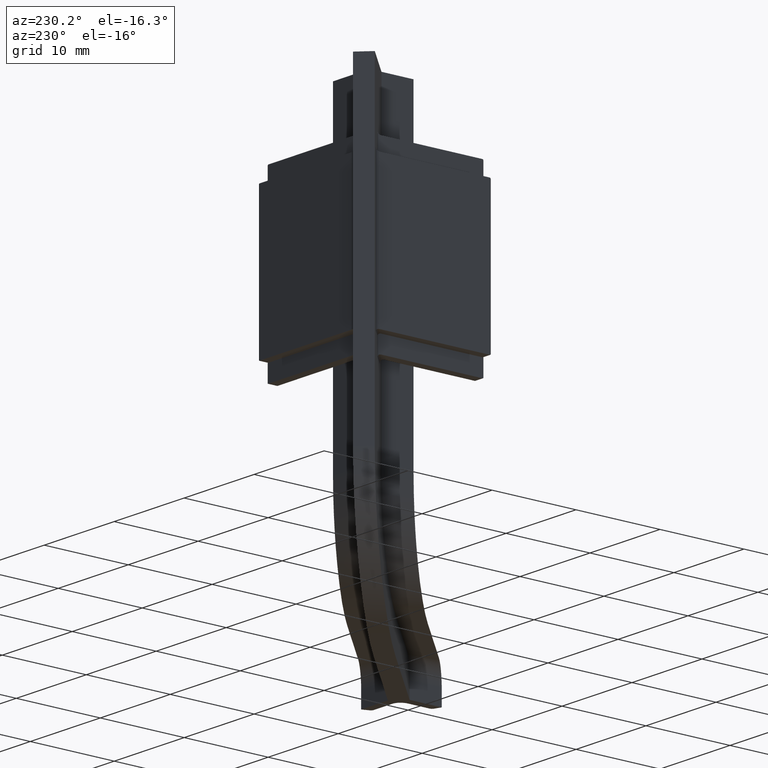
[diagram: clean part render]
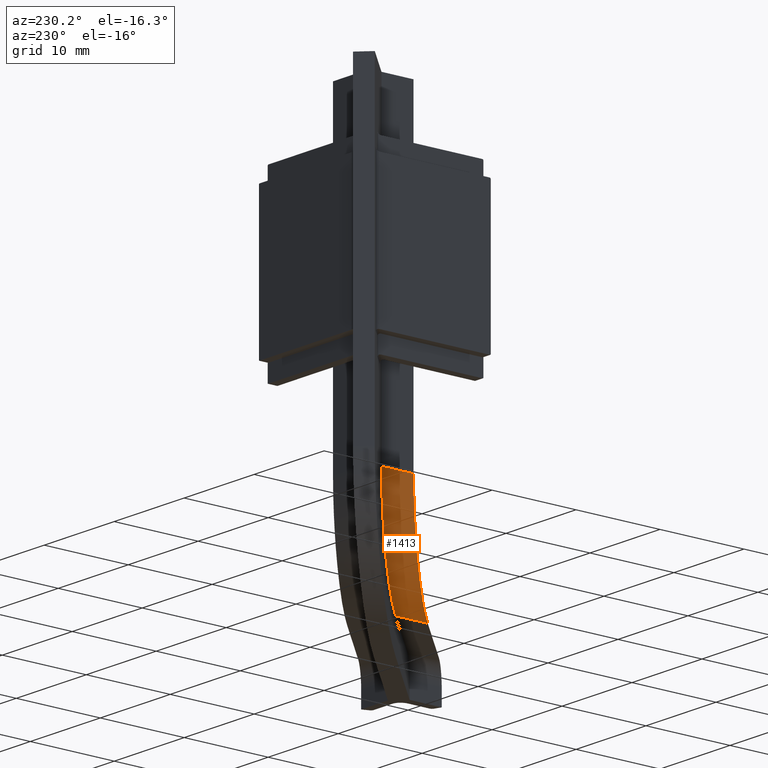
[diagram: same view with one face highlighted and labeled with its STEP entity id]
A machine part, auxiliary view. The second image highlights one B-rep face of the part: STEP entity #1413.
In plain terms, the highlighted cylindrical surface (partial cylindrical patch) has radius 10.1 mm, axis along (0, 1, 0).
Its self-contained STEP definition (entity closure, byte-faithful):
#62=ELLIPSE('',#1579,14.2835569799683,10.1);
#77=B_SPLINE_CURVE_WITH_KNOTS('',3,(#2616,#2617,#2618,#2619,#2620,#2621),
 .UNSPECIFIED.,.F.,.F.,(4,1,1,4),(0.,0.448798950512828,0.897597901025656,
1.5707963267949),.UNSPECIFIED.);
#127=CYLINDRICAL_SURFACE('',#1578,10.1);
#205=FACE_OUTER_BOUND('',#288,.T.);
#288=EDGE_LOOP('',(#1267,#1268,#1269,#1270));
#330=LINE('',#2022,#450);
#434=LINE('',#2605,#554);
#450=VECTOR('',#1611,10.);
#554=VECTOR('',#1967,10.);
#568=VERTEX_POINT('',#2014);
#570=VERTEX_POINT('',#2020);
#683=VERTEX_POINT('',#2602);
#684=VERTEX_POINT('',#2604);
#701=EDGE_CURVE('',#570,#568,#330,.T.);
#882=EDGE_CURVE('',#683,#684,#434,.T.);
#888=EDGE_CURVE('',#568,#683,#77,.T.);
#889=EDGE_CURVE('',#570,#684,#62,.T.);
#1267=ORIENTED_EDGE('',*,*,#888,.F.);
#1268=ORIENTED_EDGE('',*,*,#701,.F.);
#1269=ORIENTED_EDGE('',*,*,#889,.T.);
#1270=ORIENTED_EDGE('',*,*,#882,.F.);
#1413=ADVANCED_FACE('',(#205),#127,.T.);
#1578=AXIS2_PLACEMENT_3D('',#2615,#1978,#1979);
#1579=AXIS2_PLACEMENT_3D('',#2622,#1980,#1981);
#1611=DIRECTION('',(2.22044604925031E-16,-1.,1.63785376900147E-16));
#1967=DIRECTION('',(0.,1.,0.));
#1978=DIRECTION('center_axis',(0.,1.,0.));
#1979=DIRECTION('ref_axis',(1.,0.,-4.93432455388958E-16));
#1980=DIRECTION('center_axis',(-0.707106781186547,-0.707106781186548,-3.92523114670944E-17));
#1981=DIRECTION('ref_axis',(0.707106781186548,-0.707106781186547,-3.48909435263061E-16));
#2014=CARTESIAN_POINT('',(-0.0999999999999912,46.1,-20.));
#2020=CARTESIAN_POINT('',(-0.0999999999999912,49.9183766184074,-20.));
#2022=CARTESIAN_POINT('',(-0.099999999999989,49.9183766184074,-20.));
#2602=CARTESIAN_POINT('',(10.,36.,-30.1));
#2604=CARTESIAN_POINT('',(10.,39.8183766184073,-30.1));
#2605=CARTESIAN_POINT('',(10.,-50.,-30.1));
#2615=CARTESIAN_POINT('Origin',(10.,-50.,-20.));
#2616=CARTESIAN_POINT('Ctrl Pts',(-0.0999999999999879,46.1,-20.));
#2617=CARTESIAN_POINT('Ctrl Pts',(-0.0999999999999889,46.1,-21.5109564667265));
#2618=CARTESIAN_POINT('Ctrl Pts',(0.590756399213041,45.409243600787,-24.5280021151685));
#2619=CARTESIAN_POINT('Ctrl Pts',(3.96946619369649,42.0305338063035,-28.7768585909988));
#2620=CARTESIAN_POINT('Ctrl Pts',(7.73356529991024,38.2664347000898,-30.1));
#2621=CARTESIAN_POINT('Ctrl Pts',(10.,36.,-30.1));
#2622=CARTESIAN_POINT('Origin',(10.,39.8183766184074,-20.));